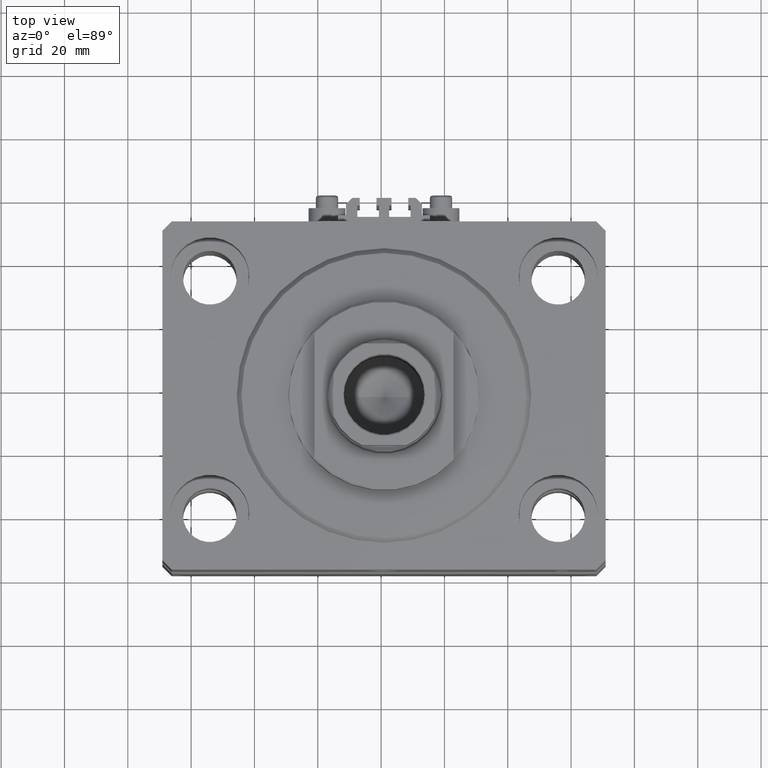
[diagram: clean part render]
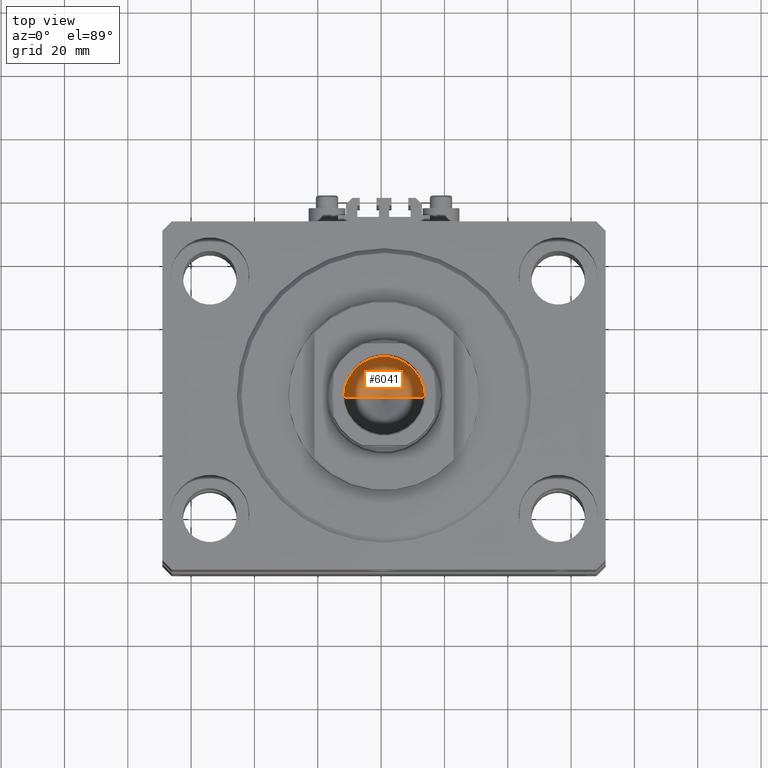
[diagram: same view with one face highlighted and labeled with its STEP entity id]
A machine part, top view. The second image highlights one B-rep face of the part: STEP entity #6041.
In plain terms, the highlighted conical surface has half-angle 59 deg.
Its self-contained STEP definition (entity closure, byte-faithful):
#2286 = CARTESIAN_POINT ( 'NONE',  ( 0.000000000000000000, 0.000000000000000000, 70.00000000000000000 ) ) ;
#5781 = CARTESIAN_POINT ( 'NONE',  ( 12.74999999999999112, 0.000000000000000000, 70.00000000000000000 ) ) ;
#5797 = AXIS2_PLACEMENT_3D ( 'NONE', #2286, #28661, #32363 ) ;
#6041 = ADVANCED_FACE ( 'NONE', ( #47669 ), #14471, .F. ) ;
#8426 = EDGE_CURVE ( 'NONE', #47391, #32891, #31153, .T. ) ;
#8457 = DIRECTION ( 'NONE',  ( -0.8571673007021117785, 1.049727191138617956E-16, 0.5150380749100550437 ) ) ;
#12417 = CARTESIAN_POINT ( 'NONE',  ( -12.74999999999999112, 1.561424668912874125E-15, 70.00000000000000000 ) ) ;
#13190 = DIRECTION ( 'NONE',  ( 0.8571673007021117785, 0.000000000000000000, 0.5150380749100550437 ) ) ;
#14471 = CONICAL_SURFACE ( 'NONE', #5797, 12.74999999999999112, 1.029744258676653423 ) ;
#16383 = ORIENTED_EDGE ( 'NONE', *, *, #22373, .T. ) ;
#16738 = CARTESIAN_POINT ( 'NONE',  ( 0.000000000000000000, 0.000000000000000000, 70.00000000000000000 ) ) ;
#17383 = LINE ( 'NONE', #5781, #39178 ) ;
#18918 = EDGE_LOOP ( 'NONE', ( #39803, #28450, #16383 ) ) ;
#19013 = CARTESIAN_POINT ( 'NONE',  ( -12.74999999999999112, 1.561424668912874125E-15, 70.00000000000000000 ) ) ;
#19744 = EDGE_CURVE ( 'NONE', #47391, #20261, #17383, .T. ) ;
#19960 = DIRECTION ( 'NONE',  ( -0.000000000000000000, -0.000000000000000000, 1.000000000000000000 ) ) ;
#20261 = VERTEX_POINT ( 'NONE', #46631 ) ;
#22373 = EDGE_CURVE ( 'NONE', #20261, #32891, #41679, .T. ) ;
#23900 = DIRECTION ( 'NONE',  ( 1.000000000000000000, 0.000000000000000000, 0.000000000000000000 ) ) ;
#28450 = ORIENTED_EDGE ( 'NONE', *, *, #19744, .T. ) ;
#28661 = DIRECTION ( 'NONE',  ( -0.000000000000000000, -0.000000000000000000, 1.000000000000000000 ) ) ;
#31153 = LINE ( 'NONE', #12417, #35821 ) ;
#32205 = AXIS2_PLACEMENT_3D ( 'NONE', #16738, #19960, #23900 ) ;
#32363 = DIRECTION ( 'NONE',  ( 1.000000000000000000, 0.000000000000000000, 0.000000000000000000 ) ) ;
#32891 = VERTEX_POINT ( 'NONE', #19013 ) ;
#35821 = VECTOR ( 'NONE', #8457, 1000.000000000000000 ) ;
#39178 = VECTOR ( 'NONE', #13190, 1000.000000000000000 ) ;
#39803 = ORIENTED_EDGE ( 'NONE', *, *, #8426, .F. ) ;
#41408 = CARTESIAN_POINT ( 'NONE',  ( -1.307202896762960287E-14, 0.000000000000000000, 62.33902710739860709 ) ) ;
#41679 = CIRCLE ( 'NONE', #32205, 12.74999999999999112 ) ;
#46631 = CARTESIAN_POINT ( 'NONE',  ( 12.74999999999999112, 0.000000000000000000, 70.00000000000000000 ) ) ;
#47391 = VERTEX_POINT ( 'NONE', #41408 ) ;
#47669 = FACE_OUTER_BOUND ( 'NONE', #18918, .T. ) ;